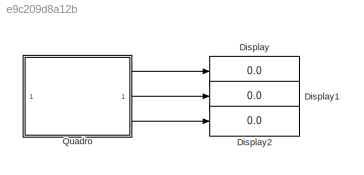
MODEL slx_e9c209d8a12b
KIND model
CONFIG AbsTol = auto
CONFIG EnableMultiTasking = off
CONFIG FixedStep = auto
CONFIG MaxStep = auto
CONFIG MinStep = auto
CONFIG RelTol = 1e-3
CONFIG SampleTimeConstraint = Unconstrained
CONFIG SolverName = VariableStepAuto
CONFIG StartTime = 0.0
CONFIG StopTime = 10.0
BLOCK [Display] Display
  Decimation = 1
BLOCK [Display] Display1
  Decimation = 1
BLOCK [Display] Display2
  Decimation = 1
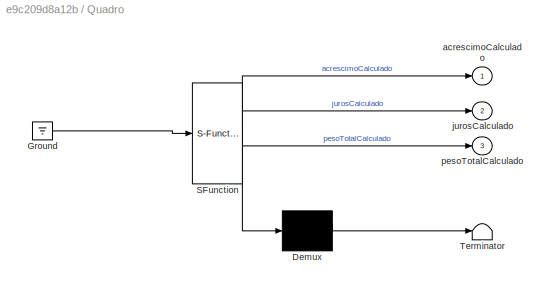
BLOCK [SubSystem] Quadro
  ErrorFcn = Stateflow.Translate.translate
  PermitHierarchicalResolution = ExplicitOnly
  SFBlockType = Chart
  TreatAsAtomicUnit = on
BLOCK [Demux] Quadro/ Demux 
  Outputs = 1
BLOCK [Ground] Quadro/ Ground 
BLOCK [S-Function] Quadro/ SFunction 
  EnableBusSupport = on
  FunctionName = sf_sfun
  PortCounts = [1 4]
  SFcnIsStateOwnerBlock = off
  SFunctionDeploymentMode = off
  Tag = Stateflow S-Function 3
BLOCK [Terminator] Quadro/ Terminator 
BLOCK [Outport] Quadro/acrescimoCalculado
BLOCK [Outport] Quadro/jurosCalculado
  Port = 2
BLOCK [Outport] Quadro/pesoTotalCalculado
  Port = 3
LINE Quadro:1 -> Display:1
LINE Quadro:2 -> Display1:1
LINE Quadro:3 -> Display2:1
CHART Quadro states=5 transitions=1
  STATE_LABEL 'pagamento = Pagamentos(indice)'
  STATE_LABEL 'SCRIPT:\nfunction pagamento = Pagamentos(indice)\n    pagamento = double(indice) * 30.0;'
  STATE_LABEL 'peso = Pesos(~)'
  STATE_LABEL 'SCRIPT:\nfunction peso = Pesos(~)\n    peso = 1.0;'
  STATE_LABEL 'pesoTotal = getPesoTotal'
  STATE_LABEL 'SCRIPT:\nfunction pesoTotal = getPesoTotal\n    acumulador = 0.0;\n    for indice = 1 : Quantidade\n        acumulador = acumulador + Pesos(indice);\n    end\n    pesoTotal = acumulador;'
  STATE_LABEL 'acrescimo = jurosParaAcrescimo(juros)'
  STATE_LABEL 'SCRIPT:\nfunction acrescimo = jurosParaAcrescimo(juros)\n    pesoTotal = getPesoTotal();\n    if juros <= 0.0 | Quantidade <= 0 | Periodo <= 0.0 | pesoTotal <= 0.0\n        acrescimo = 0.0;\n        return;\n        end\n    acumulador = 0.0;\n\n    for indice = 1 : Quantidade\n        if Composto\n            acumulador = acumulador + Pesos(indice) / (1.0 + juros / 100.0) ^ (Pagamentos(indice) / Periodo);\n ...<+266ch>'
  STATE_LABEL 'juros = acrescimoParaJuros(acrescimo, precisao, maxIteracoes, maxJuros)'
  STATE_LABEL 'SCRIPT:\nfunction juros = acrescimoParaJuros(acrescimo, precisao, maxIteracoes, maxJuros)\n    pesoTotal = getPesoTotal;\n    if maxIteracoes < 1 | Quantidade < 1 | precisao < 1 | Periodo <= 0.0 | acrescimo <= 0.0 | maxJuros <= 0.0 | pesoTotal <= 0.0\n        juros = 0.0;\n        return;\n    end\n\n    minJuros = 0.0;\n    medJuros = maxJuros / 2;\n    minDiferenca = 0.1 ^ precisao;\n    for indice = 1 : m...<+344ch>'
CHART  states=0 transitions=0
